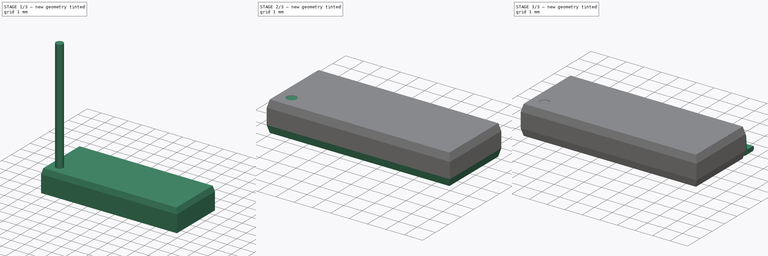
[diagram: build sequence overview — one tinted view per stage of 3, left to right]
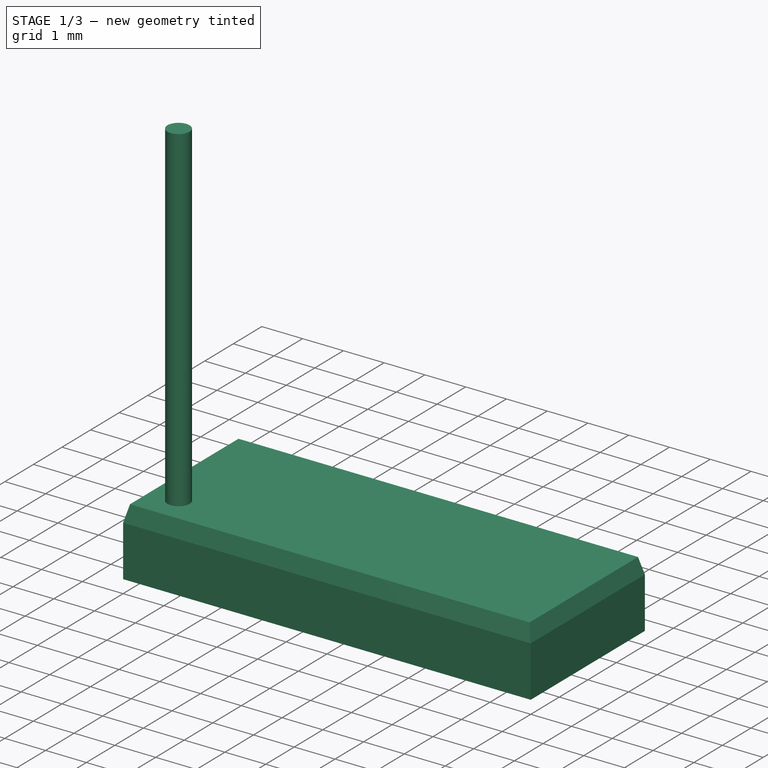
[diagram: stage 1 of 3 — iso view after this stage's code; geometry added in this stage tinted green]
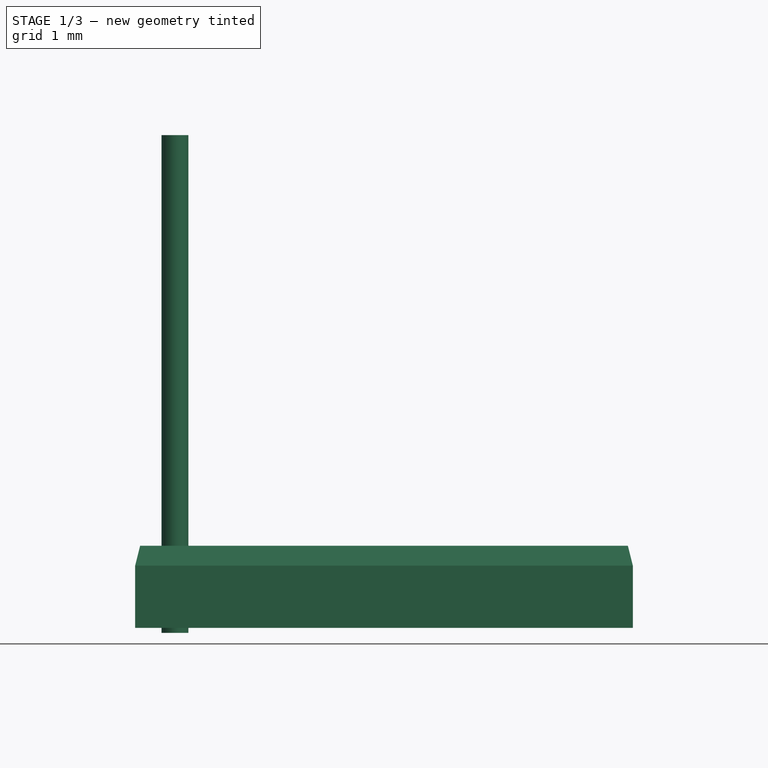
[diagram: stage 1 of 3 — front view after this stage's code; geometry added in this stage tinted green]
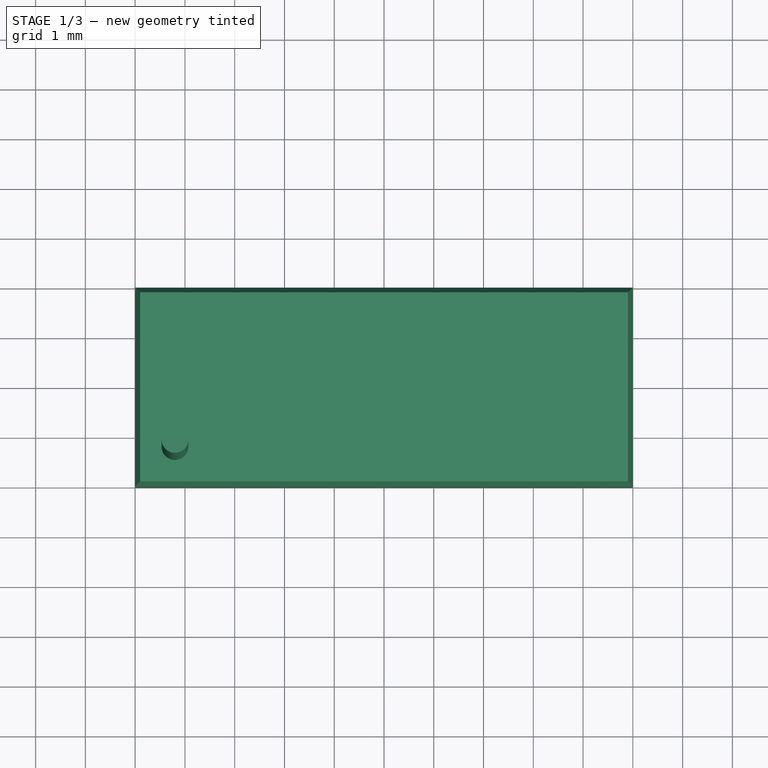
[diagram: stage 1 of 3 — top view after this stage's code; geometry added in this stage tinted green]
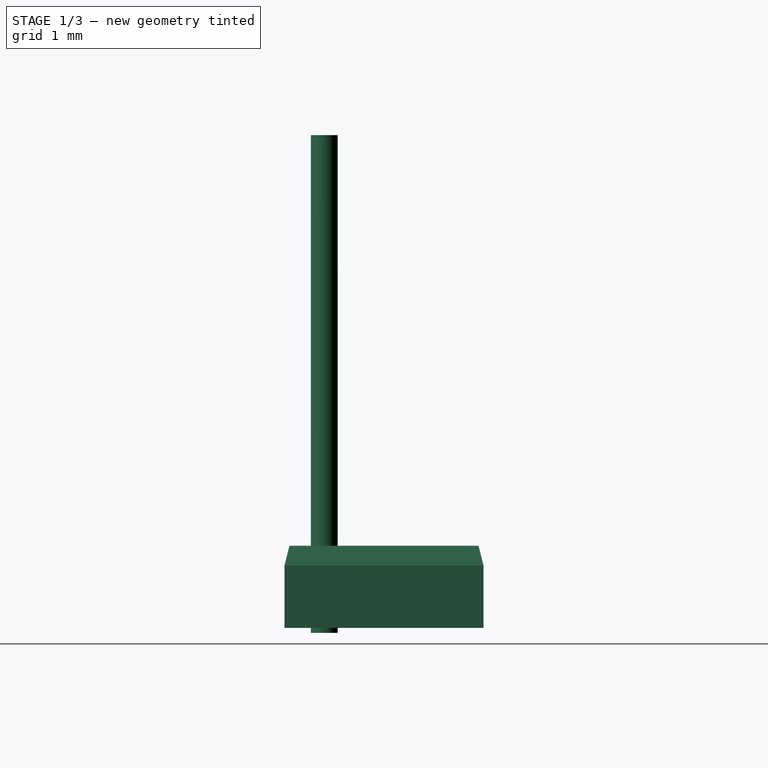
[diagram: stage 1 of 3 — right view after this stage's code; geometry added in this stage tinted green]
FCSTD DOCUMENT  (FreeCAD 0.17R13541 (Git))
Label: SOIC127P620X175-16
License: All rights reserved
LicenseURL: http://en.wikipedia.org/wiki/All_rights_reserved
objects: Sketcher::SketchObject×3, PartDesign::Pad×3, PartDesign::Body×3, Part::Chamfer×2, Part::FeaturePython×1, Part::Mirroring×1, Part::Cut×1
note: 17 computed .brp shape members not serialized (recipe doc carries the construction recipe); baked Part::Feature solids carry a one-line shape summary decoded from their .brp

FEATURE [Sketcher::SketchObject] Sketch001
  MapMode = 5
  Placement = pos=(0,0,0) rot=(0.57735,0.57735,0.57735;2.0944rad)
  Support = -> [YZ_Plane001]
  sketch-geometry (4):
    g0: LineSegment StartX=-2 StartY=1.75 StartZ=0 EndX=2 EndY=1.75 EndZ=0
    g1: LineSegment StartX=2 StartY=1.75 StartZ=0 EndX=2 EndY=0.1 EndZ=0
    g2: LineSegment StartX=2 StartY=0.1 StartZ=0 EndX=-2 EndY=0.1 EndZ=0
    g3: LineSegment StartX=-2 StartY=0.1 StartZ=0 EndX=-2 EndY=1.75 EndZ=0
  constraints (12):
    c: Coincident(g0,g1)
    c: Coincident(g1,g2)
    c: Coincident(g2,g3)
    c: Coincident(g3,g0)
    c: Horizontal(g0)
    c: Horizontal(g2)
    c: Vertical(g1)
    c: Vertical(g3)
    c: DistanceY(g-1,g2) = 0.1
    c: DistanceY(g-1,g0) = 1.75
    c: DistanceX(g2,g-1) = 2
    c: DistanceX(g-1,g1) = 2
FEATURE [PartDesign::Pad] Pad001
  Length = 5
  Length2 = 5
  Placement = pos=(0,0,0) rot=(0.57735,0.57735,0.57735;2.0944rad)
  Profile = -> Sketch001
  Type = 4
FEATURE [PartDesign::Body] Body001
  Group = -> [Sketch001,Pad001]
  Origin = -> Origin001
  Tip = -> Pad001
FEATURE [Part::Chamfer] Chamfer
  Base = -> Pad001
  Edges = 4 edges: [Edge1 r1=0.1 r2=0.4,Edge2 r1=0.1 r2=0.4,Edge3 r1=0.1 r2=0.4,Edge4 r1=0.1 r2=0.4]
FEATURE [Sketcher::SketchObject] Sketch002
  MapMode = 5
  Support = -> [XY_Plane002]
  sketch-geometry (1):
    g0: Circle CenterX=-4.2 CenterY=-1.2 CenterZ=0 NormalX=0 NormalY=0 NormalZ=1 AngleXU=0 Radius=0.27
  constraints (3):
    c: Radius(g0) = 0.27
    c: DistanceX(g0,g-1) = 4.2
    c: DistanceY(g0,g-1) = 1.2
FEATURE [PartDesign::Pad] Pad002
  Length = 10
  Length2 = 100
  Profile = -> Sketch002
  Type = 0
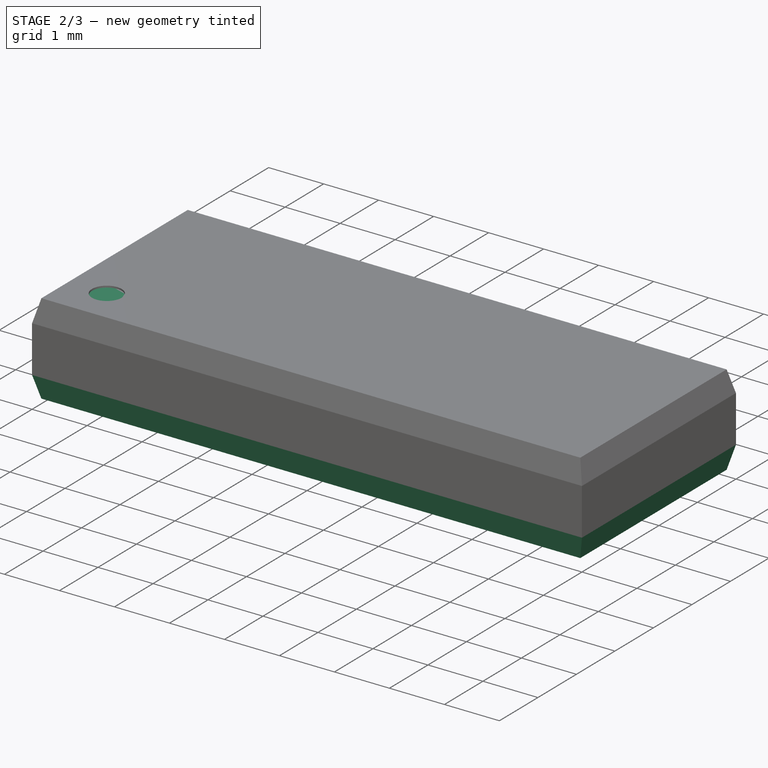
[diagram: stage 2 of 3 — iso view after this stage's code; geometry added in this stage tinted green]
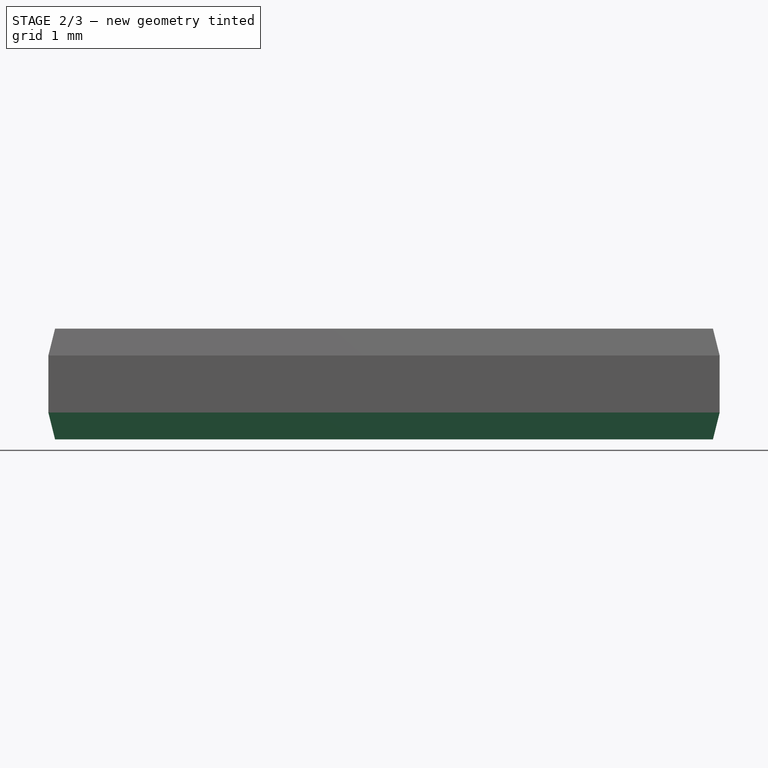
[diagram: stage 2 of 3 — front view after this stage's code; geometry added in this stage tinted green]
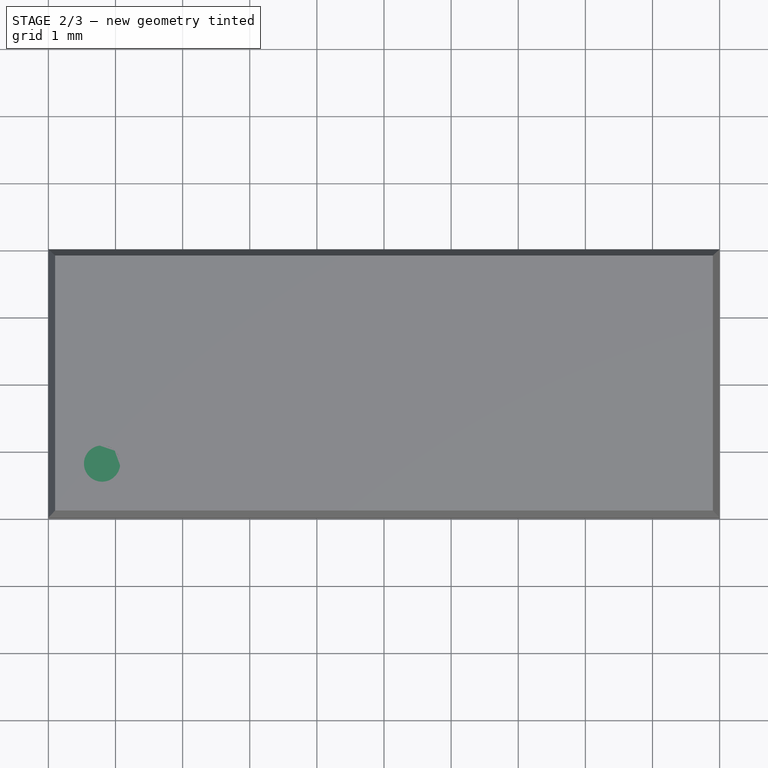
[diagram: stage 2 of 3 — top view after this stage's code; geometry added in this stage tinted green]
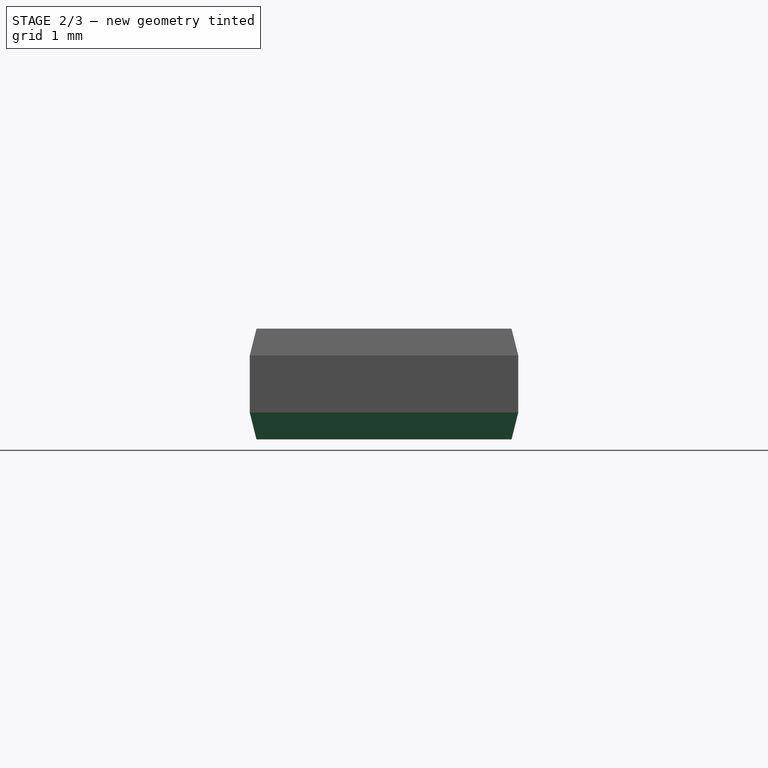
[diagram: stage 2 of 3 — right view after this stage's code; geometry added in this stage tinted green]
FEATURE [Part::Chamfer] Chamfer001
  Base = -> Chamfer
  Edges = 4 edges: [Edge14 r1=0.4 r2=0.1,Edge17 r1=0.4 r2=0.1,Edge19 r1=0.4 r2=0.1,Edge20 r1=0.4 r2=0.1]
FEATURE [PartDesign::Body] Body002
  Group = -> [Sketch002,Pad002]
  Origin = -> Origin002
  Placement = pos=(0,0,1.72) rot=(0,0,1;0rad)
  Tip = -> Pad002
FEATURE [Part::Cut] Cut
  Base = -> Chamfer001
  Tool = -> Body002
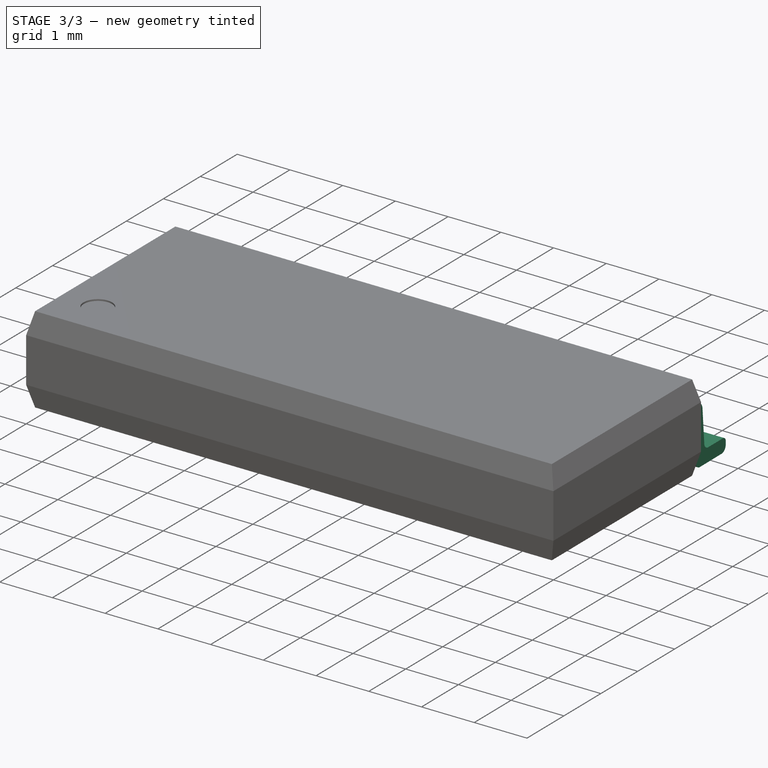
[diagram: stage 3 of 3 — iso view after this stage's code; geometry added in this stage tinted green]
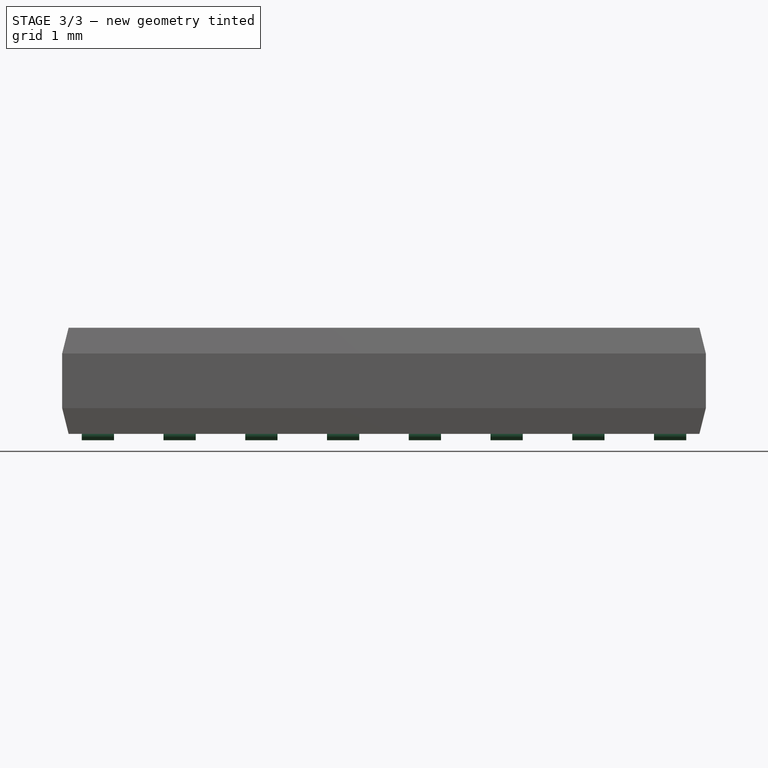
[diagram: stage 3 of 3 — front view after this stage's code; geometry added in this stage tinted green]
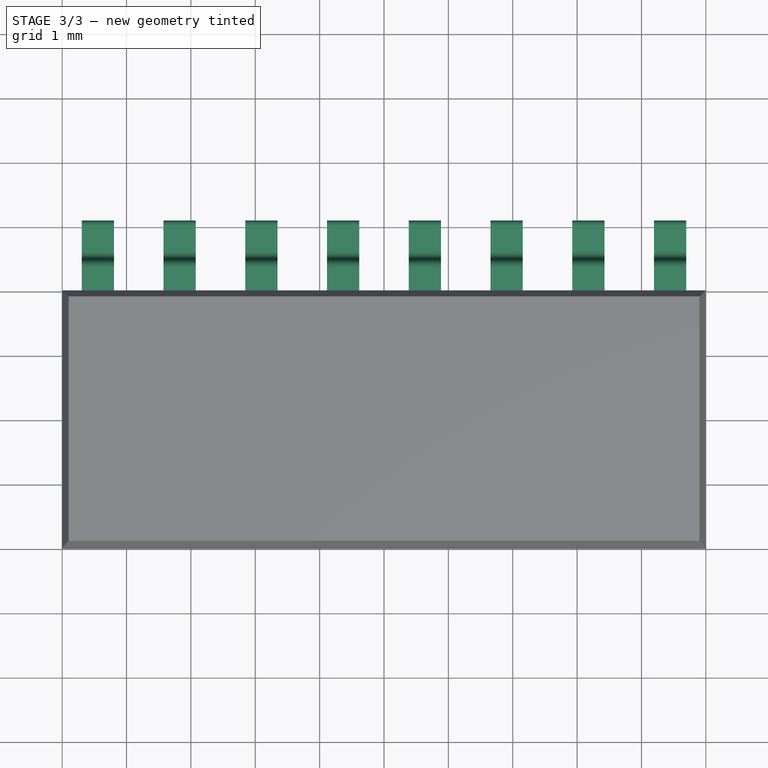
[diagram: stage 3 of 3 — top view after this stage's code; geometry added in this stage tinted green]
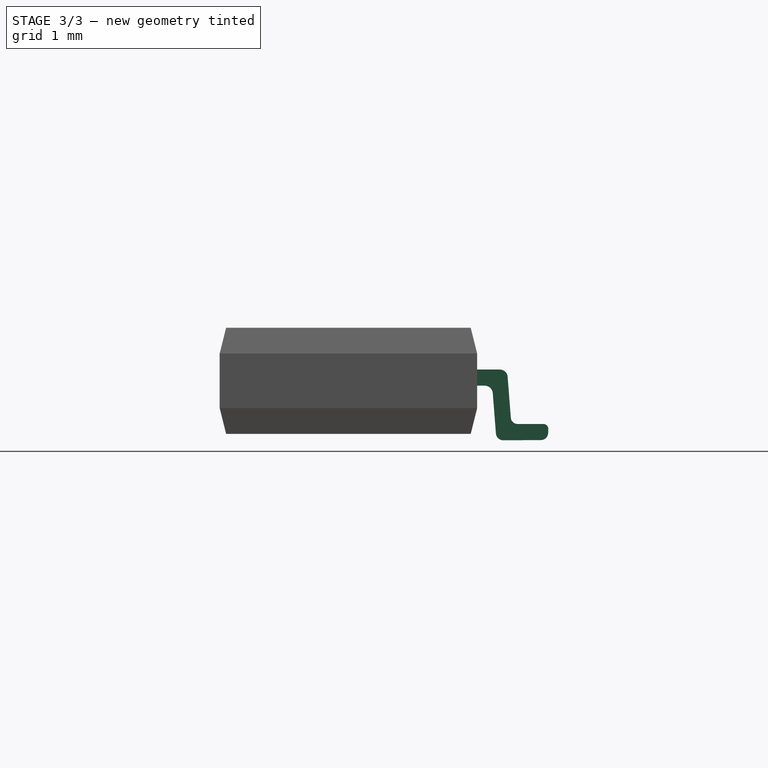
[diagram: stage 3 of 3 — right view after this stage's code; geometry added in this stage tinted green]
FEATURE [Sketcher::SketchObject] Sketch
  MapMode = 5
  Placement = pos=(0,0,0) rot=(0.57735,0.57735,0.57735;2.0944rad)
  Support = -> [YZ_Plane]
  sketch-geometry (15):
    g0: LineSegment StartX=-3.10372 StartY=0.114747 StartZ=0 EndX=-3.10569 EndY=0.173218 EndZ=0
    g1: LineSegment StartX=-3.02683 StartY=0.25477 StartZ=0 EndX=-2.627 EndY=0.254667 EndZ=0
    g2: LineSegment StartX=-2.52339 StartY=0.350479 StartZ=0 EndX=-2.47356 EndY=0.988433 EndZ=0
    g3: LineSegment StartX=-2.35294 StartY=1.1 StartZ=0 EndX=-1.99586 EndY=1.1 EndZ=0
    g4: LineSegment StartX=-1.99586 StartY=1.1 StartZ=0 EndX=-2 EndY=0.85 EndZ=0
    g5: LineSegment StartX=-2 StartY=0.85 StartZ=0 EndX=-2.1167 EndY=0.849652 EndZ=0
    g6: LineSegment StartX=-2.24278 StartY=0.732686 StartZ=0 EndX=-2.29176 EndY=0.105508 EndZ=0
    g7: LineSegment StartX=-2.40583 StartY=0.000633774 StartZ=0 EndX=-2.98998 EndY=0.00413214 EndZ=0
    g8: LineSegment StartX=-2.25978 StartY=0.514915 StartZ=0 EndX=-2.50903 EndY=0.534381 EndZ=0
    g9: ArcOfCircle CenterX=-2.9893 CenterY=0.118614 CenterZ=0 NormalX=0 NormalY=0 NormalZ=1 AngleXU=0 Radius=0.114484 StartAngle=3.17538 EndAngle=4.7064
    g10: ArcOfCircle CenterX=-3.02685 CenterY=0.175883 CenterZ=0 NormalX=0 NormalY=0 NormalZ=1 AngleXU=0 Radius=0.078887 StartAngle=1.57054 EndAngle=3.17538
    g11: ArcOfCircle CenterX=-2.40515 CenterY=0.114364 CenterZ=0 NormalX=0 NormalY=0 NormalZ=1 AngleXU=0 Radius=0.113732 StartAngle=4.7064 EndAngle=6.20524
    g12: ArcOfCircle CenterX=-2.62698 CenterY=0.35857 CenterZ=0 NormalX=0 NormalY=0 NormalZ=1 AngleXU=0 Radius=0.103903 StartAngle=4.71213 EndAngle=6.20524
    g13: ArcOfCircle CenterX=-2.35294 CenterY=0.979012 CenterZ=0 NormalX=0 NormalY=0 NormalZ=1 AngleXU=0 Radius=0.120988 StartAngle=1.5708 EndAngle=3.06365
    g14: ArcOfCircle CenterX=-2.11632 CenterY=0.722809 CenterZ=0 NormalX=0 NormalY=0 NormalZ=1 AngleXU=0 Radius=0.126843 StartAngle=1.57378 EndAngle=3.06365
  constraints (23):
    c: Horizontal(g3)
    c: Coincident(g3,g4)
    c: Coincident(g4,g5)
    c: DistanceX(g4,g-1) = 2
    c: DistanceY(g4,g3) = 0.25
    c: PointOnObject(g8,g6)
    c: PointOnObject(g8,g2)
    c: Perpendicular(g8,g6)
    c: Perpendicular(g8,g2)
    c: Distance(g8) = 0.25
    c: DistanceY(g-1,g4) = 0.85
    c: Tangent(g0,g9) = 1.5708
    c: Tangent(g7,g9) = 1.5708
    c: Tangent(g0,g10) = 1.5708
    c: Tangent(g1,g10) = 1.5708
    c: Tangent(g7,g11) = 1.5708
    c: Tangent(g6,g11) = 1.5708
    c: Tangent(g1,g12) = -1.5708
    c: Tangent(g2,g12) = -1.5708
    c: Tangent(g2,g13) = 1.5708
    c: Tangent(g3,g13) = 1.5708
    c: Tangent(g6,g14) = -1.5708
    c: Tangent(g5,g14) = -1.5708
FEATURE [PartDesign::Pad] Pad
  Length = 0.25
  Length2 = 0.25
  Placement = pos=(0,0,0) rot=(0.57735,0.57735,0.57735;2.0944rad)
  Profile = -> Sketch
  Type = 4
FEATURE [PartDesign::Body] Body
  Group = -> [Sketch,Pad]
  Origin = -> Origin
  Tip = -> Pad
FEATURE [Part::FeaturePython] Array  # Draft array (typed FeaturePython)
  Angle = 360
  ArrayType = 0
  Axis = (0,0,1)
  Base = -> Body
  Center = (0,0,0)
  Fuse = false
  IntervalAxis = (0,0,0)
  IntervalX = (1.27,0,0)
  IntervalY = (0,1,0)
  IntervalZ = (0,0,0)
  NumberPolar = 1
  NumberX = 8
  NumberY = 1
  NumberZ = 1
  Placement = pos=(-4.445,0,0) rot=(0,0,1;0rad)
FEATURE [Part::Mirroring] Part__Mirroring  label="Array (Mirror #1)"
  Base = (0,0,0)
  Normal = (0,1,0)
  Source = -> Array
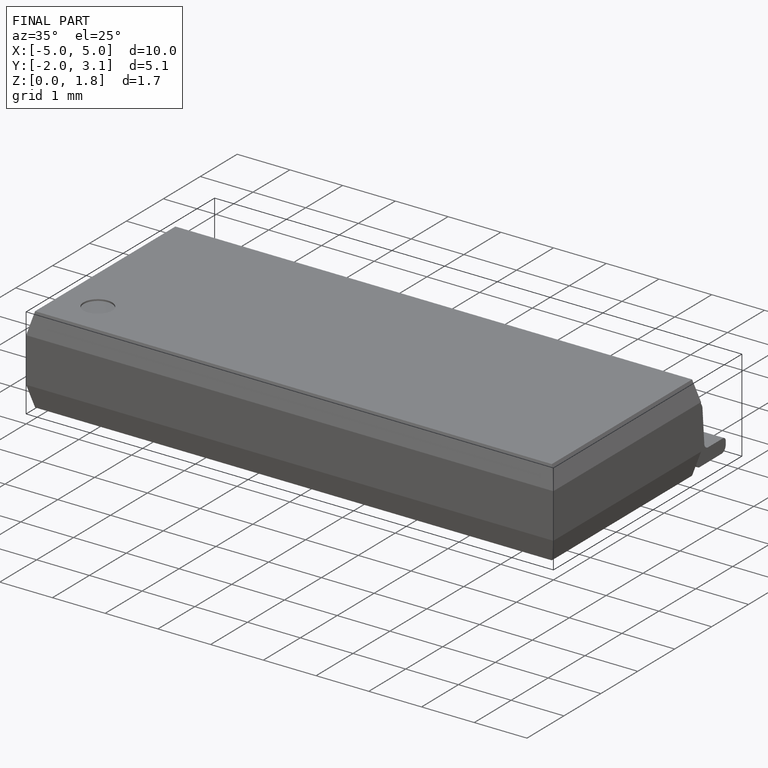
[diagram: finished part — iso view with bounding-box wireframe]
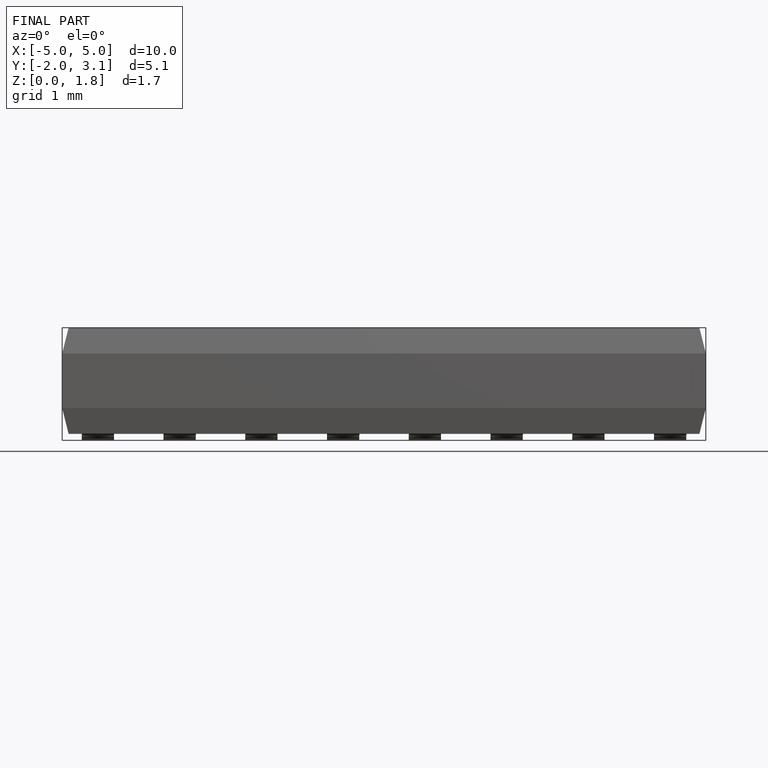
[diagram: finished part — front view with bounding-box wireframe]
